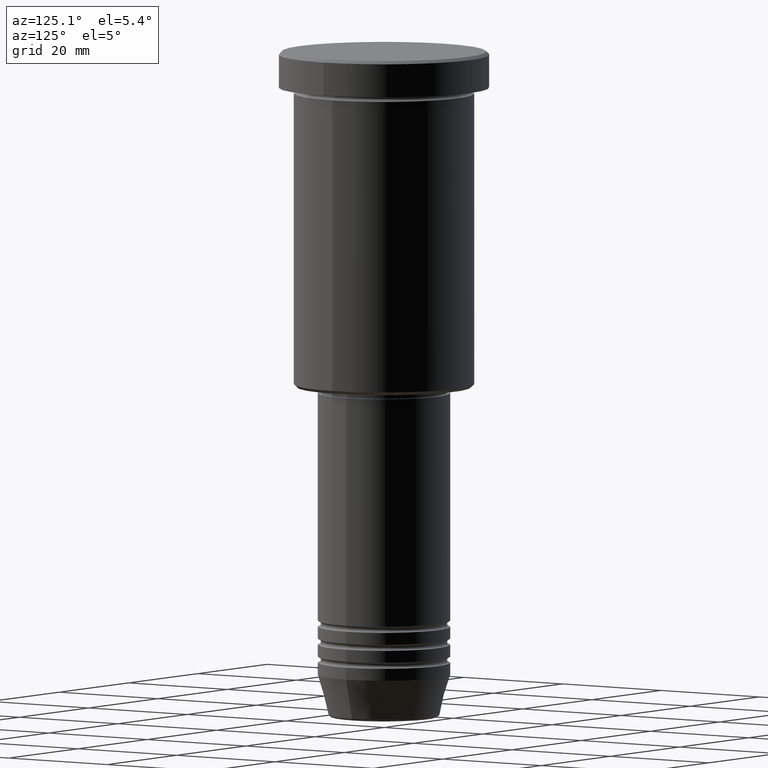
[diagram: clean part render]
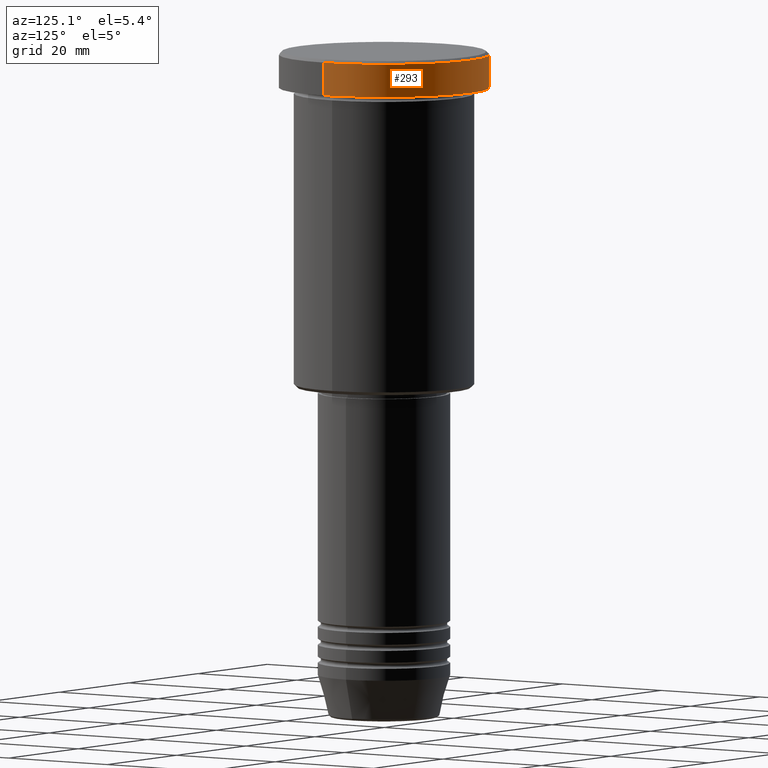
[diagram: same view with one face highlighted and labeled with its STEP entity id]
A machine part, auxiliary view. The second image highlights one B-rep face of the part: STEP entity #293.
In plain terms, the highlighted cylindrical surface (partial cylindrical patch) has radius 17.5 mm, axis along (-0, -0, 1).
Its self-contained STEP definition (entity closure, byte-faithful):
#1 = FACE_OUTER_BOUND ( 'NONE', #672, .T. ) ;
#30 = AXIS2_PLACEMENT_3D ( 'NONE', #729, #71, #707 ) ;
#32 = VERTEX_POINT ( 'NONE', #185 ) ;
#44 = ORIENTED_EDGE ( 'NONE', *, *, #1163, .T. ) ;
#71 = DIRECTION ( 'NONE',  ( -0.000000000000000000, -0.000000000000000000, 1.000000000000000000 ) ) ;
#72 = AXIS2_PLACEMENT_3D ( 'NONE', #628, #716, #542 ) ;
#107 = CARTESIAN_POINT ( 'NONE',  ( -17.50000000000000000, 2.143131898507868248E-15, 0.000000000000000000 ) ) ;
#185 = CARTESIAN_POINT ( 'NONE',  ( 17.50000000000000000, 0.000000000000000000, -5.999999999999995559 ) ) ;
#205 = LINE ( 'NONE', #107, #491 ) ;
#223 = ORIENTED_EDGE ( 'NONE', *, *, #714, .T. ) ;
#259 = DIRECTION ( 'NONE',  ( 1.000000000000000000, 0.000000000000000000, 0.000000000000000000 ) ) ;
#293 = ADVANCED_FACE ( 'NONE', ( #1 ), #441, .T. ) ;
#412 = CARTESIAN_POINT ( 'NONE',  ( 17.50000000000000000, 0.000000000000000000, 0.000000000000000000 ) ) ;
#441 = CYLINDRICAL_SURFACE ( 'NONE', #636, 17.50000000000000000 ) ;
#457 = VERTEX_POINT ( 'NONE', #653 ) ;
#491 = VECTOR ( 'NONE', #836, 1000.000000000000000 ) ;
#504 = EDGE_CURVE ( 'NONE', #869, #1044, #205, .T. ) ;
#542 = DIRECTION ( 'NONE',  ( 1.000000000000000000, 0.000000000000000000, 0.000000000000000000 ) ) ;
#628 = CARTESIAN_POINT ( 'NONE',  ( 0.000000000000000000, 0.000000000000000000, -0.5000000000000281997 ) ) ;
#630 = EDGE_CURVE ( 'NONE', #32, #457, #952, .T. ) ;
#636 = AXIS2_PLACEMENT_3D ( 'NONE', #713, #1065, #259 ) ;
#653 = CARTESIAN_POINT ( 'NONE',  ( 17.50000000000000000, 0.000000000000000000, -0.5000000000000281997 ) ) ;
#656 = CARTESIAN_POINT ( 'NONE',  ( -17.50000000000000000, 2.143131898507868248E-15, -5.999999999999995559 ) ) ;
#672 = EDGE_LOOP ( 'NONE', ( #44, #1042, #223, #801 ) ) ;
#707 = DIRECTION ( 'NONE',  ( 1.000000000000000000, 0.000000000000000000, 0.000000000000000000 ) ) ;
#713 = CARTESIAN_POINT ( 'NONE',  ( 0.000000000000000000, 0.000000000000000000, 0.000000000000000000 ) ) ;
#714 = EDGE_CURVE ( 'NONE', #1044, #457, #1156, .T. ) ;
#716 = DIRECTION ( 'NONE',  ( 0.000000000000000000, 0.000000000000000000, -1.000000000000000000 ) ) ;
#729 = CARTESIAN_POINT ( 'NONE',  ( 0.000000000000000000, 0.000000000000000000, -5.999999999999995559 ) ) ;
#801 = ORIENTED_EDGE ( 'NONE', *, *, #630, .F. ) ;
#836 = DIRECTION ( 'NONE',  ( -0.000000000000000000, -0.000000000000000000, 1.000000000000000000 ) ) ;
#869 = VERTEX_POINT ( 'NONE', #656 ) ;
#952 = LINE ( 'NONE', #412, #1076 ) ;
#970 = DIRECTION ( 'NONE',  ( -0.000000000000000000, -0.000000000000000000, 1.000000000000000000 ) ) ;
#1042 = ORIENTED_EDGE ( 'NONE', *, *, #504, .T. ) ;
#1044 = VERTEX_POINT ( 'NONE', #1045 ) ;
#1045 = CARTESIAN_POINT ( 'NONE',  ( -17.50000000000000000, 2.143131898507868248E-15, -0.5000000000000281997 ) ) ;
#1065 = DIRECTION ( 'NONE',  ( -0.000000000000000000, -0.000000000000000000, 1.000000000000000000 ) ) ;
#1076 = VECTOR ( 'NONE', #970, 1000.000000000000000 ) ;
#1078 = CIRCLE ( 'NONE', #30, 17.50000000000000000 ) ;
#1156 = CIRCLE ( 'NONE', #72, 17.50000000000000000 ) ;
#1163 = EDGE_CURVE ( 'NONE', #32, #869, #1078, .T. ) ;